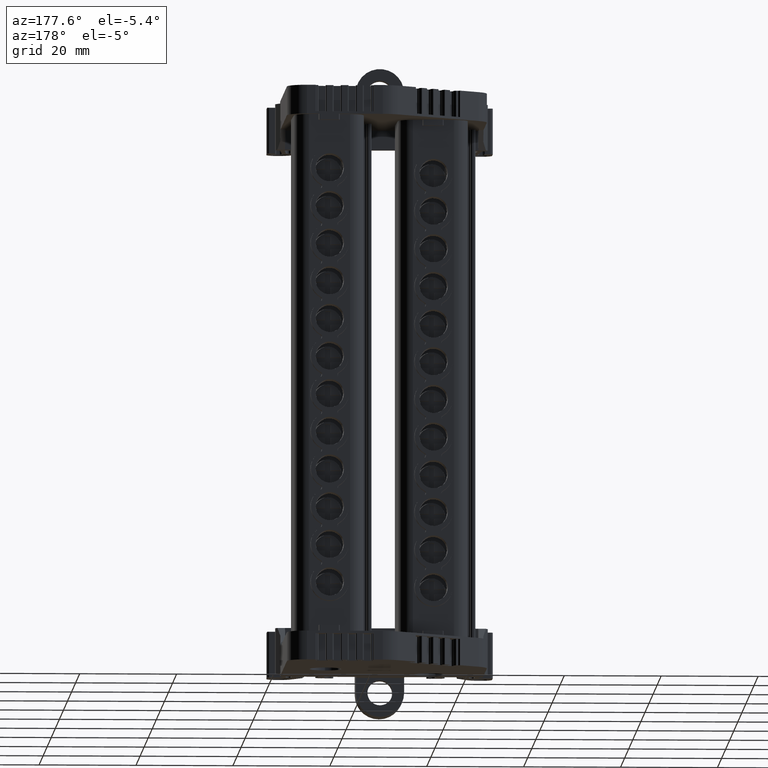
[diagram: clean part render]
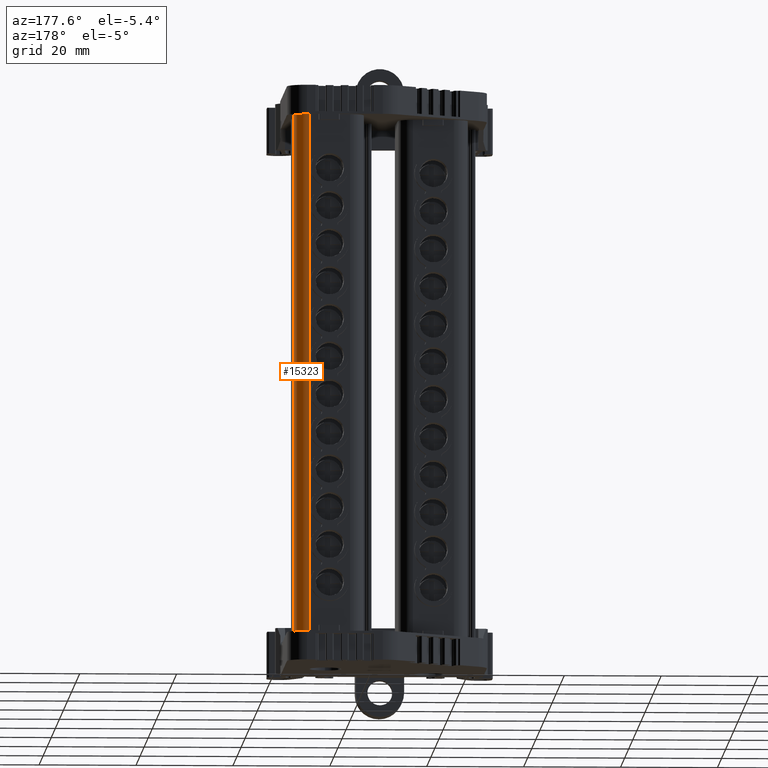
[diagram: same view with one face highlighted and labeled with its STEP entity id]
A machine part, auxiliary view. The second image highlights one B-rep face of the part: STEP entity #15323.
In plain terms, the highlighted cylindrical surface (edge-blend (fillet) strip) has radius 2.9989 mm, axis along (-0, -0, -1).
Its self-contained STEP definition (entity closure, byte-faithful):
#9631 = EDGE_CURVE ( 'NONE', #21255, #21205, #34789, .T. ) ;
#9674 = EDGE_CURVE ( 'NONE', #21261, #21286, #34859, .T. ) ;
#9691 = EDGE_CURVE ( 'NONE', #21286, #21205, #71482, .T. ) ;
#9725 = EDGE_CURVE ( 'NONE', #21255, #21261, #23454, .T. ) ;
#15323 = ADVANCED_FACE ( 'NONE', ( #51058 ), #51105, .T. ) ;
#21205 = VERTEX_POINT ( 'NONE', #64524 ) ;
#21255 = VERTEX_POINT ( 'NONE', #61667 ) ;
#21261 = VERTEX_POINT ( 'NONE', #61541 ) ;
#21286 = VERTEX_POINT ( 'NONE', #61559 ) ;
#23060 = DIRECTION ( 'NONE',  ( 1.387778780767670500E-017, 9.690813043904511800E-032, 1.000000000000000000 ) ) ;
#23076 = CARTESIAN_POINT ( 'NONE',  ( -30.35511577740295100, 45.51670309895735800, 70.97218928989246900 ) ) ;
#23084 = DIRECTION ( 'NONE',  ( 1.000000000000000000, 0.0000000000000000000, 0.0000000000000000000 ) ) ;
#23210 = CARTESIAN_POINT ( 'NONE',  ( -30.35511577743170600, 45.51670309895563100, -36.09779384098864300 ) ) ;
#23242 = DIRECTION ( 'NONE',  ( -1.000000000000000000, 0.0000000000000000000, 2.684055664152421600E-013 ) ) ;
#23285 = DIRECTION ( 'NONE',  ( 2.686070184306041300E-013, 1.604972357196100300E-014, 1.000000000000000000 ) ) ;
#23315 = CARTESIAN_POINT ( 'NONE',  ( -30.35511577740663100, 48.51556673507060700, -36.09779384098875700 ) ) ;
#23320 = CARTESIAN_POINT ( 'NONE',  ( -30.35511577739412600, 48.51556673507281700, 70.08343692883210000 ) ) ;
#23336 = CARTESIAN_POINT ( 'NONE',  ( -30.35511577739412600, 48.51556673507283100, 70.97218928989246900 ) ) ;
#23454 = LINE ( 'NONE', #23465, #34989 ) ;
#23460 = DIRECTION ( 'NONE',  ( -2.688052679989871900E-013, -4.692013405963708400E-015, -1.000000000000000000 ) ) ;
#23465 = CARTESIAN_POINT ( 'NONE',  ( -27.35670888277533700, 45.56904048598419600, -36.82605170661215500 ) ) ;
#34789 = CIRCLE ( 'NONE', #34804, 2.998863636113957600 ) ;
#34804 = AXIS2_PLACEMENT_3D ( 'NONE', #23076, #23060, #23084 ) ;
#34859 = CIRCLE ( 'NONE', #34924, 2.998863636113954000 ) ;
#34924 = AXIS2_PLACEMENT_3D ( 'NONE', #23210, #23285, #23242 ) ;
#34989 = VECTOR ( 'NONE', #23460, 1000.000000000000000 ) ;
#47520 = AXIS2_PLACEMENT_3D ( 'NONE', #51123, #51114, #51106 ) ;
#51058 = FACE_OUTER_BOUND ( 'NONE', #61350, .T. ) ;
#51105 = CYLINDRICAL_SURFACE ( 'NONE', #47520, 2.998863636113957600 ) ;
#51106 = DIRECTION ( 'NONE',  ( -1.000000000000000000, 0.0000000000000000000, 2.684055664152418600E-013 ) ) ;
#51114 = DIRECTION ( 'NONE',  ( -2.686070184306041300E-013, -1.604972357196100300E-014, -1.000000000000000000 ) ) ;
#51123 = CARTESIAN_POINT ( 'NONE',  ( -30.35511577742836000, 45.51670309895583700, -23.63105170672496800 ) ) ;
#61350 = EDGE_LOOP ( 'NONE', ( #71148, #71170, #71124, #72300 ) ) ;
#61541 = CARTESIAN_POINT ( 'NONE',  ( -27.35670888277513100, 45.56904048598360600, -36.09779384098944600 ) ) ;
#61559 = CARTESIAN_POINT ( 'NONE',  ( -30.35511577740663100, 48.51556673507060700, -36.09779384098875700 ) ) ;
#61667 = CARTESIAN_POINT ( 'NONE',  ( -27.35670888274608400, 45.56904048598440900, 70.97218928989246900 ) ) ;
#64524 = CARTESIAN_POINT ( 'NONE',  ( -30.35511577739412600, 48.51556673507283100, 70.97218928989246900 ) ) ;
#71124 = ORIENTED_EDGE ( 'NONE', *, *, #9674, .T. ) ;
#71148 = ORIENTED_EDGE ( 'NONE', *, *, #9631, .F. ) ;
#71170 = ORIENTED_EDGE ( 'NONE', *, *, #9725, .T. ) ;
#71482 = B_SPLINE_CURVE_WITH_KNOTS ( 'NONE', 1,
 ( #23315, #23320, #23336 ),
 .UNSPECIFIED., .F., .F.,
 ( 2, 1, 2 ),
 ( 0.0000000000000000000, 1.000000000000000000, 1.008370145595571600 ),
 .UNSPECIFIED. ) ;
#72300 = ORIENTED_EDGE ( 'NONE', *, *, #9691, .T. ) ;